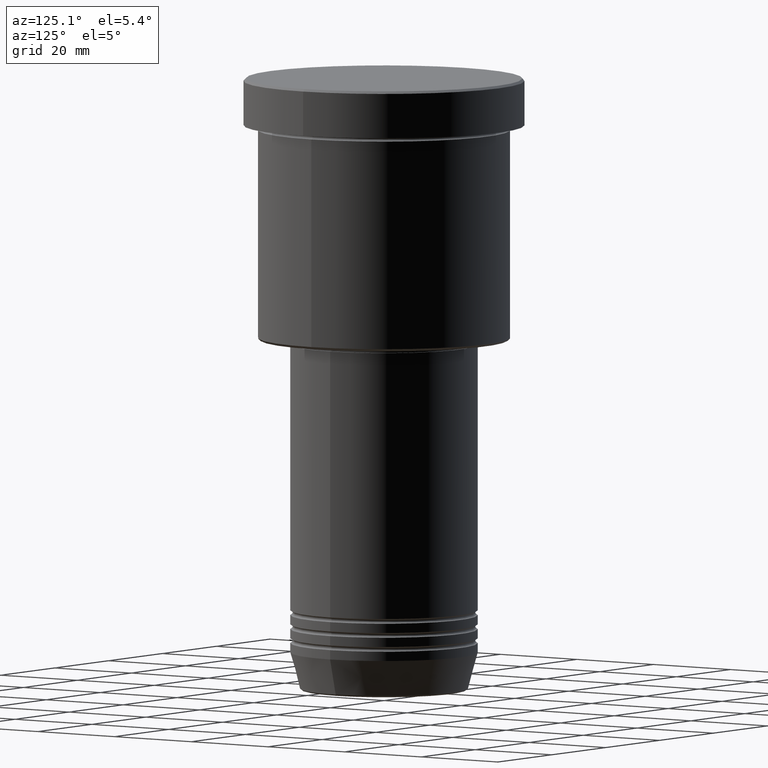
[diagram: clean part render]
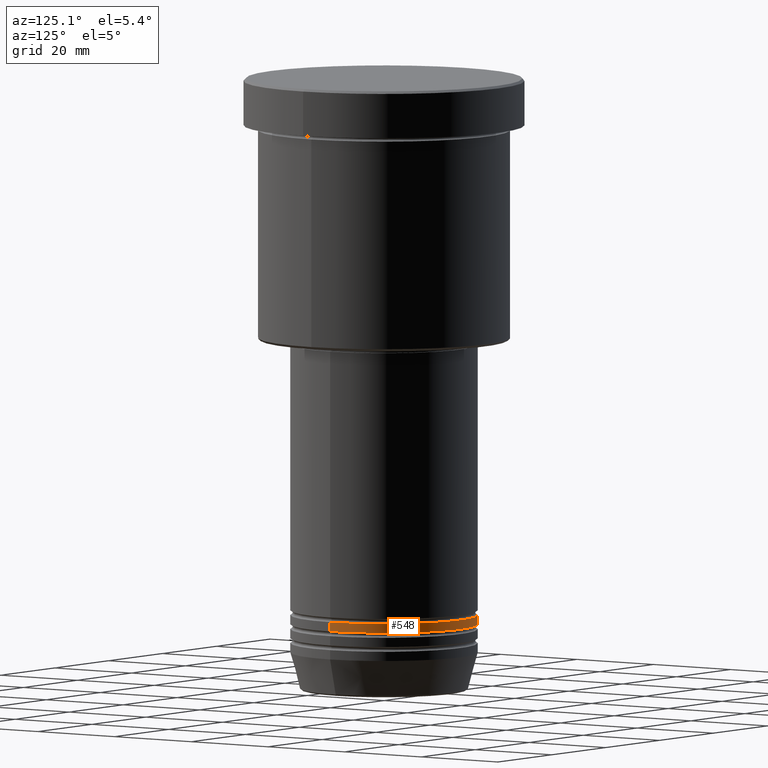
[diagram: same view with one face highlighted and labeled with its STEP entity id]
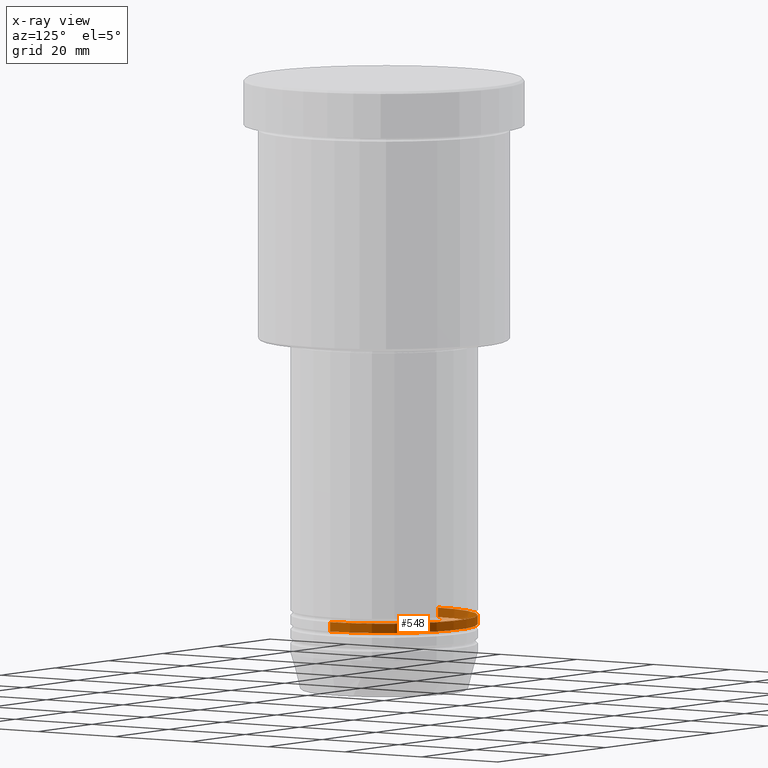
[diagram: x-ray of the same camera — body ghosted, the highlighted face saturated]
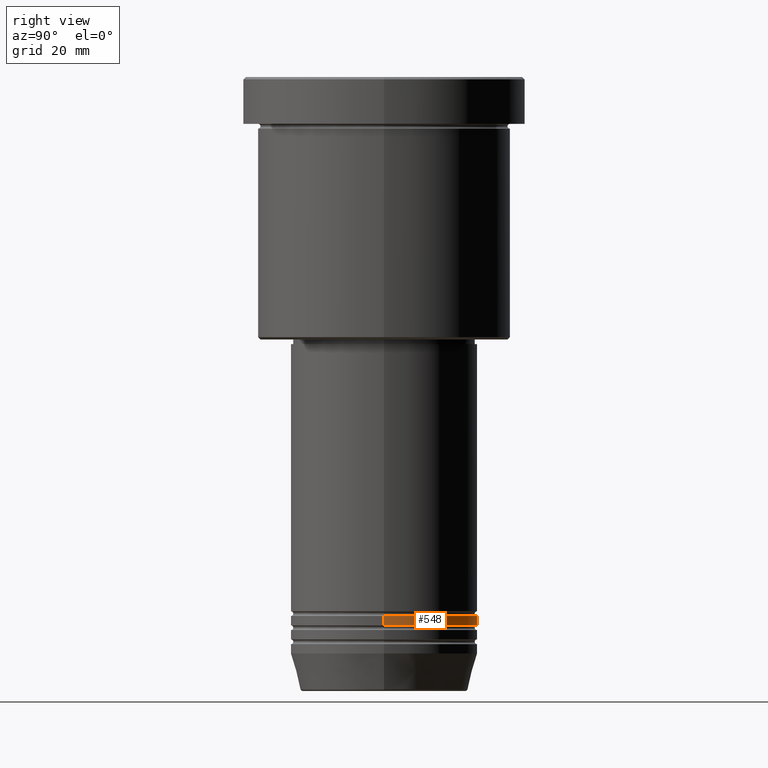
[diagram: same view with one face highlighted and labeled with its STEP entity id]
A machine part, auxiliary view. The second image highlights one B-rep face of the part: STEP entity #548.
The next image is the same camera in x-ray: the body ghosted, the highlighted face saturated — about 16% of this face is hidden behind the body in this view.
A second angle (right view) of the same face is appended — the face is thin or edge-on in the first view.
In plain terms, the highlighted cylindrical surface (partial cylindrical patch) has radius 20 mm, axis along (-0, -0, 1).
Its self-contained STEP definition (entity closure, byte-faithful):
#36 = LINE ( 'NONE', #979, #714 ) ;
#61 = CARTESIAN_POINT ( 'NONE',  ( 20.00000000000000000, 0.000000000000000000, 0.000000000000000000 ) ) ;
#73 = ORIENTED_EDGE ( 'NONE', *, *, #1124, .T. ) ;
#123 = CIRCLE ( 'NONE', #671, 20.00000000000000000 ) ;
#127 = DIRECTION ( 'NONE',  ( -0.000000000000000000, -0.000000000000000000, 1.000000000000000000 ) ) ;
#163 = VERTEX_POINT ( 'NONE', #1157 ) ;
#185 = AXIS2_PLACEMENT_3D ( 'NONE', #653, #763, #660 ) ;
#281 = AXIS2_PLACEMENT_3D ( 'NONE', #1011, #933, #474 ) ;
#288 = EDGE_CURVE ( 'NONE', #163, #551, #1009, .T. ) ;
#304 = CARTESIAN_POINT ( 'NONE',  ( 0.000000000000000000, 0.000000000000000000, -114.9999999999999716 ) ) ;
#408 = EDGE_CURVE ( 'NONE', #163, #618, #1080, .T. ) ;
#421 = DIRECTION ( 'NONE',  ( -0.000000000000000000, -0.000000000000000000, 1.000000000000000000 ) ) ;
#474 = DIRECTION ( 'NONE',  ( 1.000000000000000000, 0.000000000000000000, 0.000000000000000000 ) ) ;
#548 = ADVANCED_FACE ( 'NONE', ( #750 ), #843, .T. ) ;
#551 = VERTEX_POINT ( 'NONE', #735 ) ;
#566 = ORIENTED_EDGE ( 'NONE', *, *, #288, .T. ) ;
#618 = VERTEX_POINT ( 'NONE', #992 ) ;
#653 = CARTESIAN_POINT ( 'NONE',  ( 0.000000000000000000, 0.000000000000000000, -116.9999999999999716 ) ) ;
#659 = ORIENTED_EDGE ( 'NONE', *, *, #885, .F. ) ;
#660 = DIRECTION ( 'NONE',  ( 1.000000000000000000, 0.000000000000000000, 0.000000000000000000 ) ) ;
#671 = AXIS2_PLACEMENT_3D ( 'NONE', #304, #1057, #846 ) ;
#692 = ORIENTED_EDGE ( 'NONE', *, *, #408, .F. ) ;
#714 = VECTOR ( 'NONE', #127, 1000.000000000000000 ) ;
#735 = CARTESIAN_POINT ( 'NONE',  ( -20.00000000000000000, 2.449293598294706513E-15, -116.9999999999999716 ) ) ;
#737 = VECTOR ( 'NONE', #421, 1000.000000000000000 ) ;
#750 = FACE_OUTER_BOUND ( 'NONE', #1008, .T. ) ;
#763 = DIRECTION ( 'NONE',  ( -0.000000000000000000, -0.000000000000000000, 1.000000000000000000 ) ) ;
#843 = CYLINDRICAL_SURFACE ( 'NONE', #281, 20.00000000000000000 ) ;
#846 = DIRECTION ( 'NONE',  ( 1.000000000000000000, 0.000000000000000000, 0.000000000000000000 ) ) ;
#862 = VERTEX_POINT ( 'NONE', #1055 ) ;
#885 = EDGE_CURVE ( 'NONE', #618, #862, #123, .T. ) ;
#933 = DIRECTION ( 'NONE',  ( -0.000000000000000000, -0.000000000000000000, 1.000000000000000000 ) ) ;
#979 = CARTESIAN_POINT ( 'NONE',  ( -20.00000000000000000, 2.449293598294706513E-15, 0.000000000000000000 ) ) ;
#992 = CARTESIAN_POINT ( 'NONE',  ( 20.00000000000000000, 0.000000000000000000, -114.9999999999999716 ) ) ;
#1008 = EDGE_LOOP ( 'NONE', ( #566, #73, #659, #692 ) ) ;
#1009 = CIRCLE ( 'NONE', #185, 20.00000000000000000 ) ;
#1011 = CARTESIAN_POINT ( 'NONE',  ( 0.000000000000000000, 0.000000000000000000, 0.000000000000000000 ) ) ;
#1055 = CARTESIAN_POINT ( 'NONE',  ( -20.00000000000000000, 2.449293598294706513E-15, -114.9999999999999716 ) ) ;
#1057 = DIRECTION ( 'NONE',  ( -0.000000000000000000, -0.000000000000000000, 1.000000000000000000 ) ) ;
#1080 = LINE ( 'NONE', #61, #737 ) ;
#1124 = EDGE_CURVE ( 'NONE', #551, #862, #36, .T. ) ;
#1157 = CARTESIAN_POINT ( 'NONE',  ( 20.00000000000000000, 0.000000000000000000, -116.9999999999999716 ) ) ;